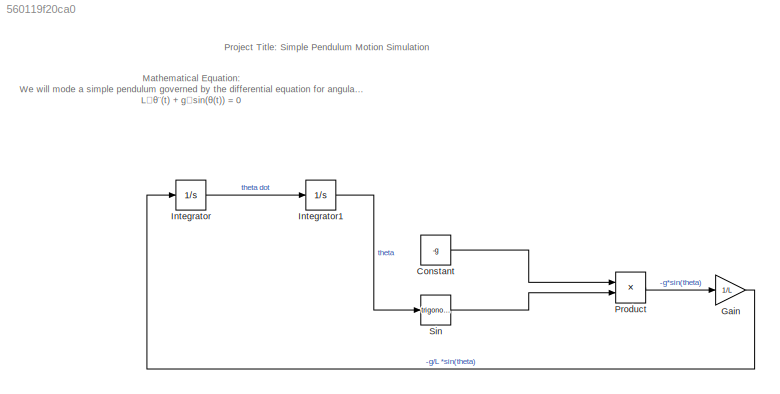
MODEL slx_560119f20ca0
KIND model
CONFIG AbsTol = auto
CONFIG EnableMultiTasking = off
CONFIG FixedStep = auto
CONFIG MaxStep = 1e-3
CONFIG MinStep = auto
CONFIG RelTol = 1e-3
CONFIG SampleTimeConstraint = Unconstrained
CONFIG SolverName = VariableStepAuto
CONFIG StartTime = 0.0
CONFIG StopTime = 10.0
BLOCK [Constant] Constant
  Value = -g
BLOCK [Gain] Gain
  Gain = 1/L
BLOCK [Integrator] Integrator
BLOCK [Integrator] Integrator1
  InitialCondition = theta0
BLOCK [Product] Product
BLOCK [Trigonometry] Sin
ANNOTATION (root): P roject Title: Simple Pendulum Motion Simulation
ANNOTATION (root): M athematical Equation: We will mode a simple pendulum governed by the differential equation for angular displacement θ ( t ): L ⋅ θ ¨( t ) + g ⋅sin( θ ( t )) = 0
LINE Constant:1 -> Product:1
LINE Gain:1 -> Integrator:1
LINE Integrator1:1 -> Sin:1
LINE Integrator:1 -> Integrator1:1
LINE Product:1 -> Gain:1
LINE Sin:1 -> Product:2
